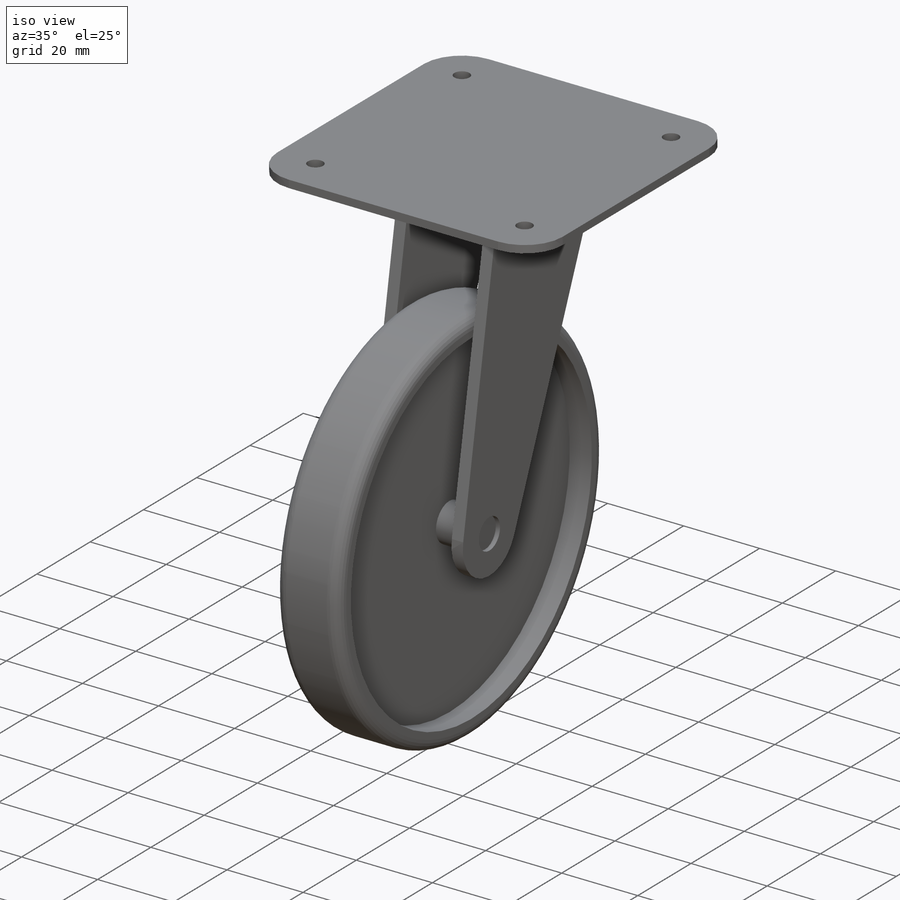
[diagram: iso view]
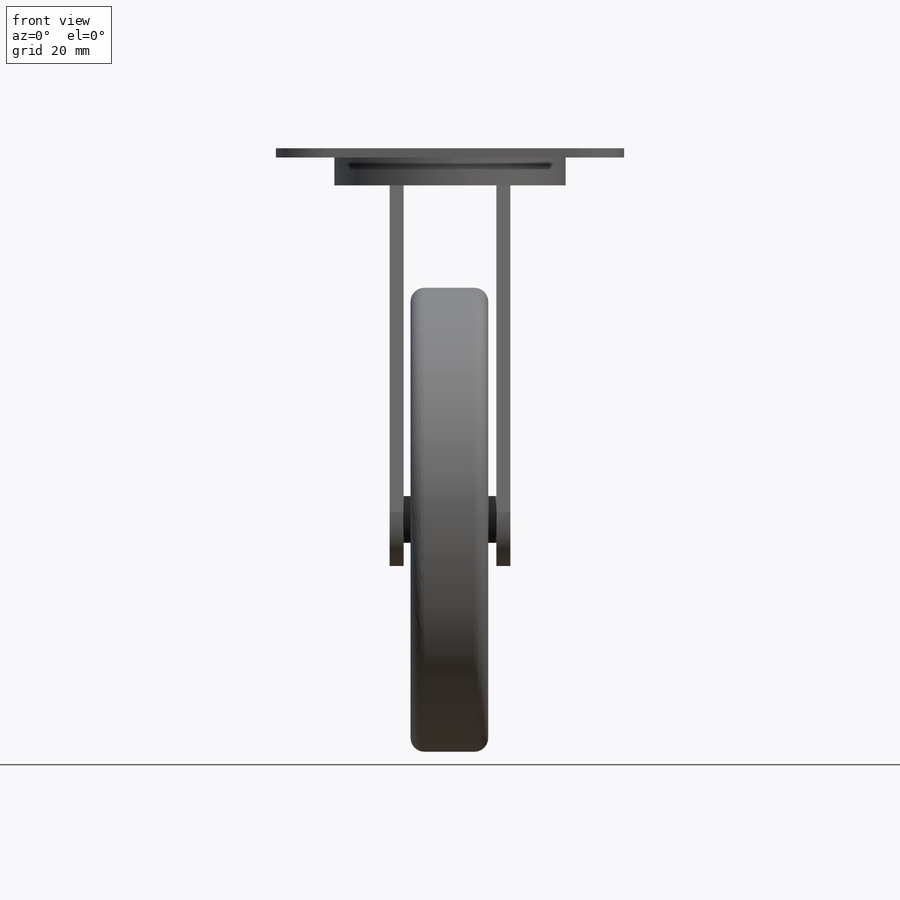
[diagram: front view]
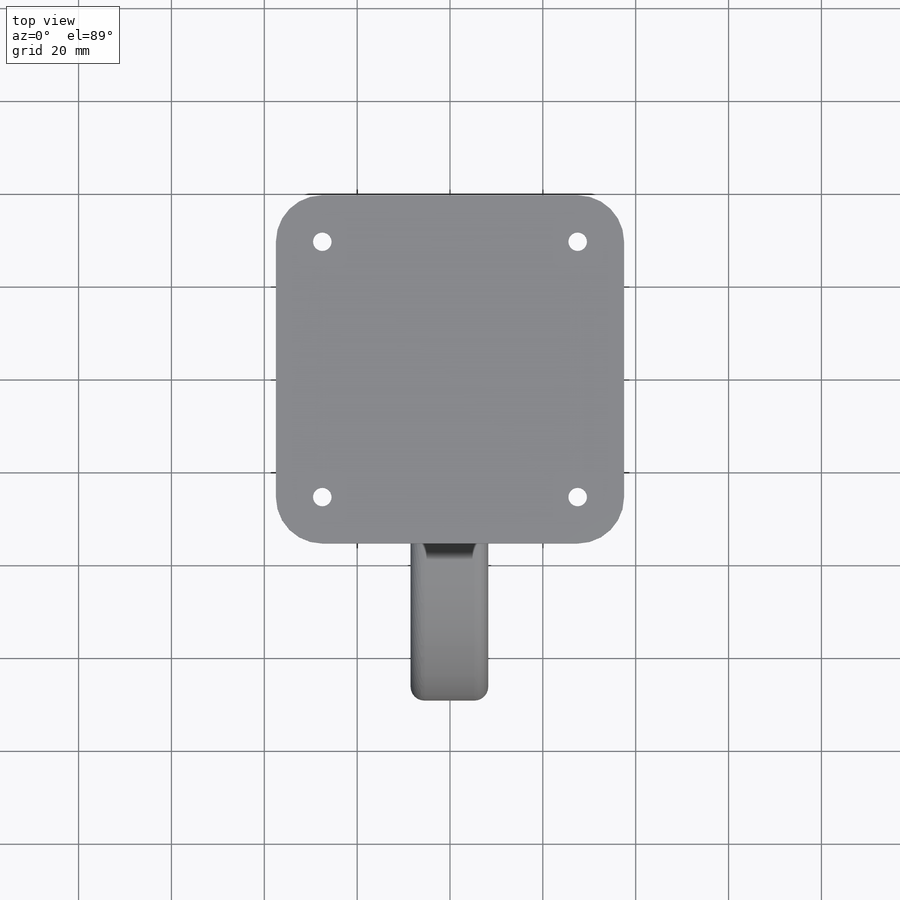
[diagram: top view]
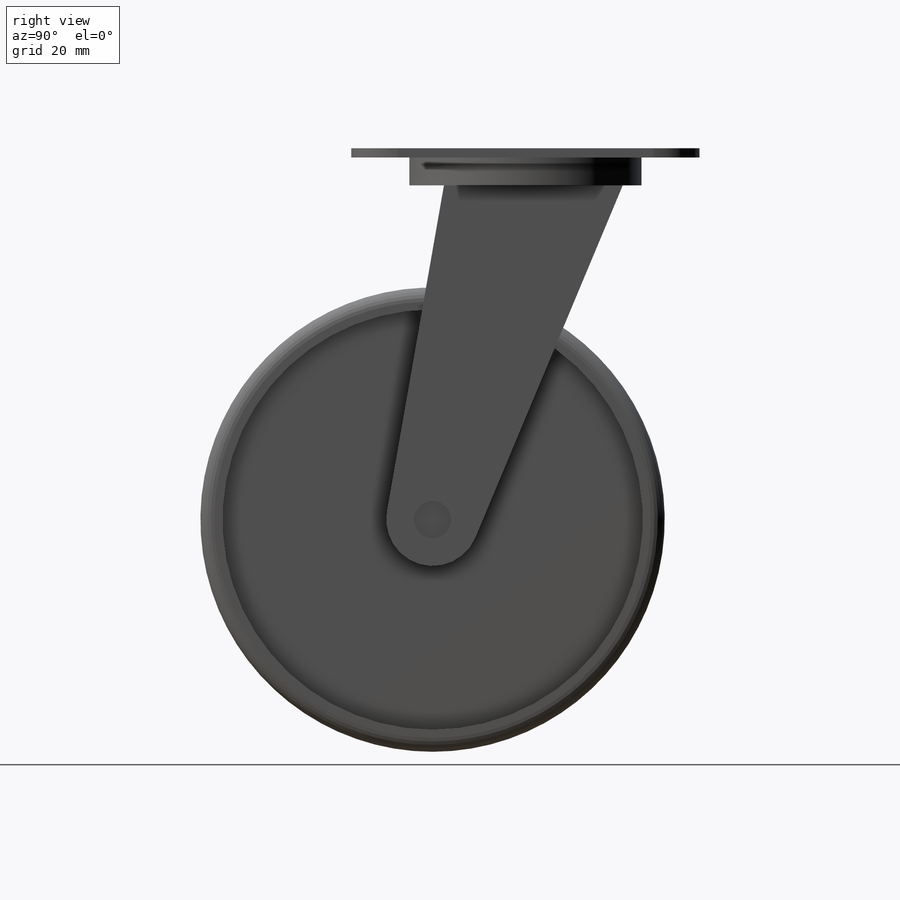
[diagram: right view]
SOLIDWORKS PART (.sldprt)
format: sldprt  version: not decoded by parser v0  size: 311,808 bytes
history: native  units: mm
features: sketch x4, extrude x3, material x1, fillet x1, mirror x1, plane x1, revolve x1 (+11 scaffold rows collapsed)
feature tree (23):
  scaffold x11  (default folders/planes/origin — collapsed)
  material  "Material <not specified>"
  sketch  "Sketch1"  dims[c1.D4=~5.281066mm c1.D5=~5.281066mm c1.D6=4.0mm c1.D1=75.0mm c1.D2=37.5mm c1.D3=37.5mm c2.D4=10.0mm c2.D5=10.0mm c2.D7=4.0]
  extrude  "Boss-Extrude1"  Depth=2mm
  fillet  "Fillet1"  Radius=10mm
  sketch  "Sketch2"  dims[D1=50.0mm]
  extrude  "Boss-Extrude2"  Depth=6mm
  sketch  "Sketch3"  dims[c1.D1=100.0mm c1.D4=8.0mm c1.D5=20.0mm c1.D2=20.0mm c1.D3=~64.995224mm c2.D2=20.0mm c2.D3=80.0mm]
  extrude  "Boss-Extrude3"  Depth=3mm
  mirror  "Mirror1"
  plane  "Plane1"
  sketch  "Sketch4"  dims[D1=3.0mm D2=~4.748253mm D3=5.0mm D4=50.0mm]
  revolve  "Revolve1"  Angle=360deg
decode coverage: 9 of 10 modeling features carry decoded parameters
note: ~ marks probable driven/reference dimensions
note: suppression state not decoded; provenance and decode notes live in map.json
